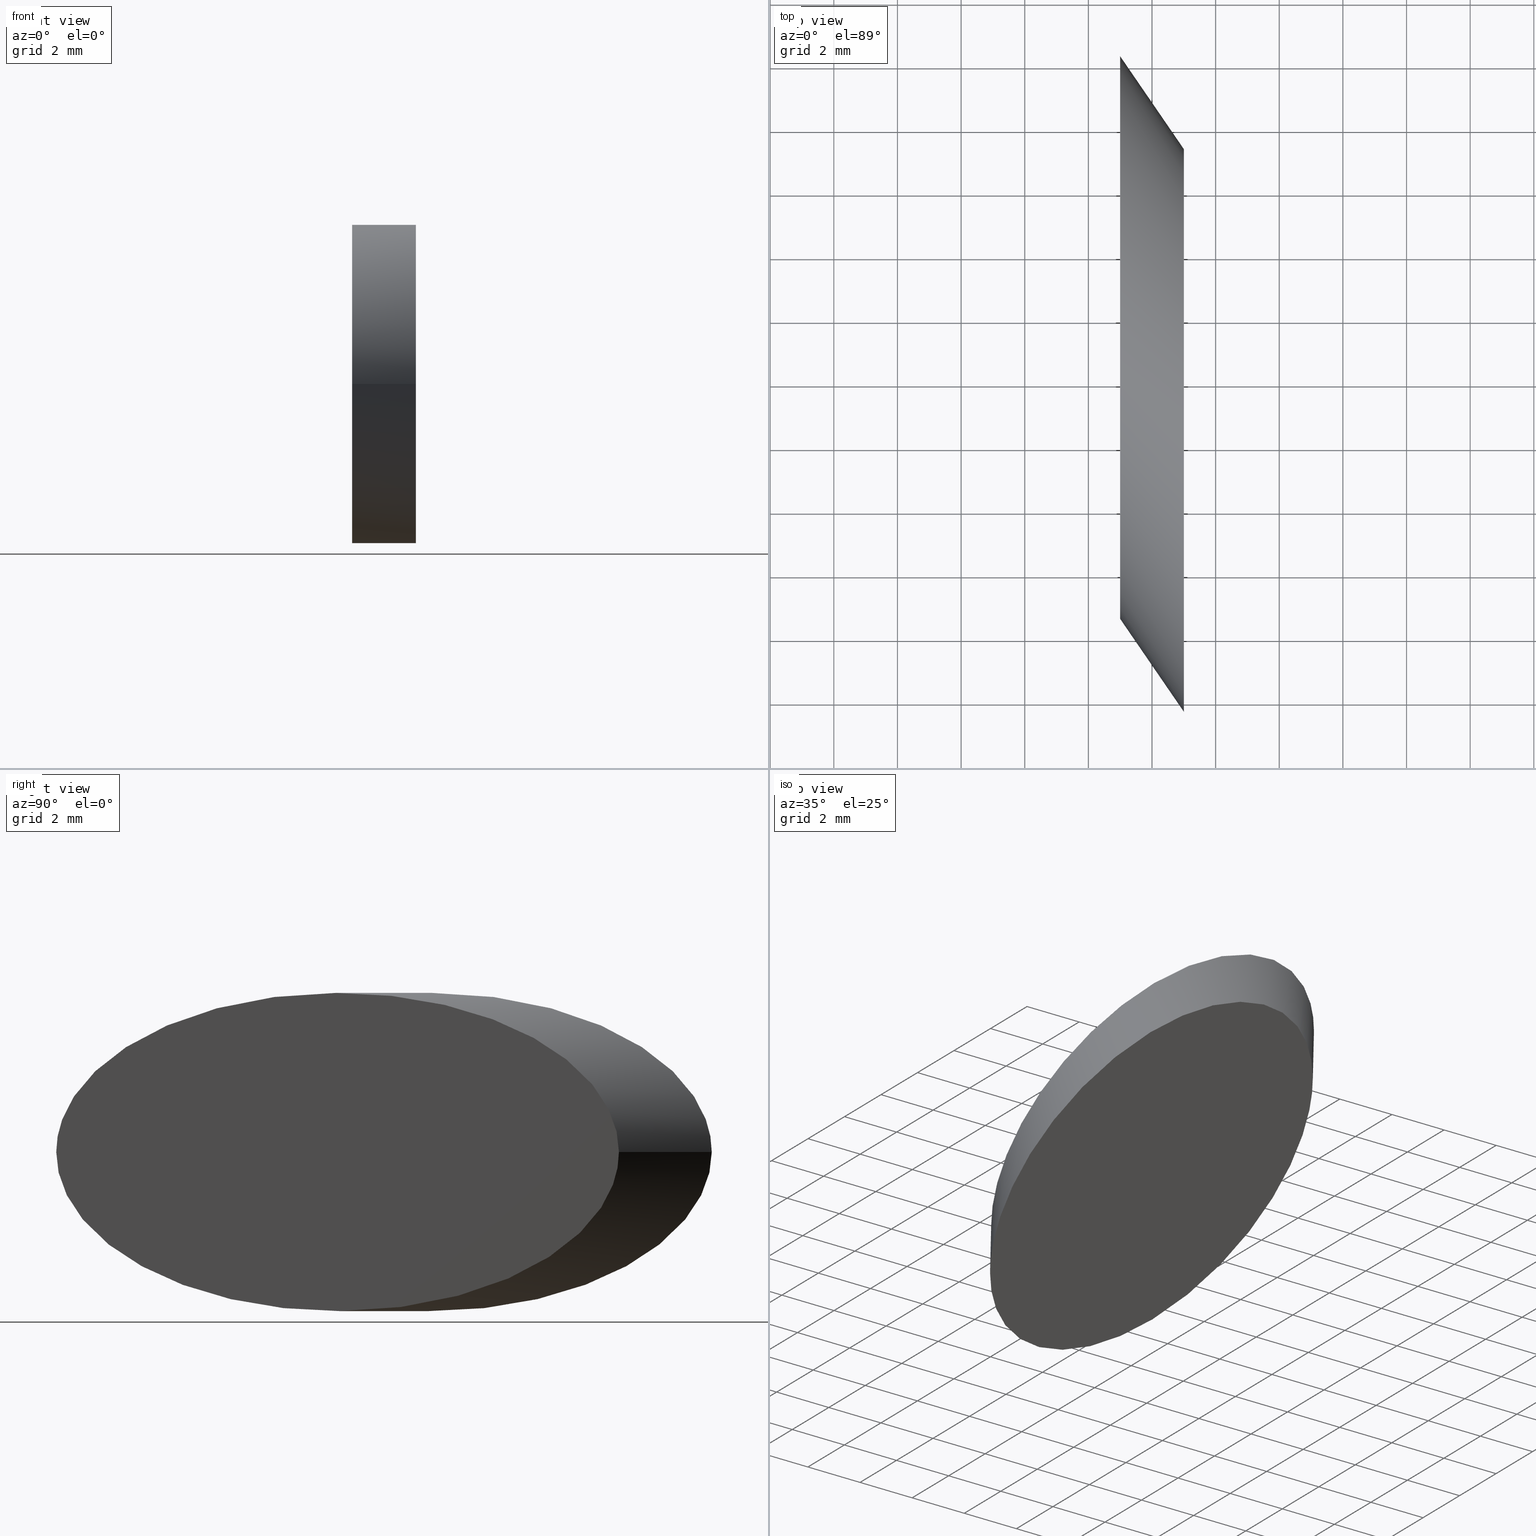
[diagram: canonical four-view strip — front | top / right | iso, engineering-drawing reading convention]
A machine part, canonical four-view strip (front | top / right | iso — engineering-drawing reading convention). The complete STEP part file that produces these views, byte-faithful:
ISO-10303-21;
HEADER;
FILE_DESCRIPTION (( 'STEP AP203' ),
    '1' );
FILE_NAME ('Web Model 65823.STEP',
    '2017-01-31T19:18:51',
    ( '' ),
    ( '' ),
    'SwSTEP 2.0',
    'SolidWorks 2016',
    '' );
FILE_SCHEMA (( 'CONFIG_CONTROL_DESIGN' ));
ENDSEC;

DATA;
#1 = COORDINATED_UNIVERSAL_TIME_OFFSET ( 5, 0, .BEHIND. ) ;
#2 = AXIS2_PLACEMENT_3D ( 'NONE', #50, #145, #36 ) ;
#3 = ADVANCED_FACE ( 'NONE', ( #53 ), #8, .T. ) ;
#4 = ORIENTED_EDGE ( 'NONE', *, *, #69, .T. ) ;
#5 = CALENDAR_DATE ( 2017, 31, 1 ) ;
#6 = COORDINATED_UNIVERSAL_TIME_OFFSET ( 5, 0, .BEHIND. ) ;
#7 = PERSON_AND_ORGANIZATION ( #15, #165 ) ;
#8 = PLANE ( 'NONE',  #92 ) ;
#9 = EDGE_LOOP ( 'NONE', ( #37, #141 ) ) ;
#10 = ORIENTED_EDGE ( 'NONE', *, *, #57, .F. ) ;
#11 = PRODUCT_DEFINITION_SHAPE ( 'NONE', 'NONE',  #55 ) ;
#12 = ADVANCED_FACE ( 'NONE', ( #88 ), #148, .T. ) ;
#13 = APPROVAL_STATUS ( 'not_yet_approved' ) ;
#14 = PERSON_AND_ORGANIZATION_ROLE ( 'creator' ) ;
#15 = PERSON ( 'UNSPECIFIED', 'UNSPECIFIED', 'UNSPECIFIED', ('UNSPECIFIED'), ('UNSPECIFIED'), ('UNSPECIFIED') ) ;
#16 = CALENDAR_DATE ( 2017, 31, 1 ) ;
#17 = VERTEX_POINT ( 'NONE', #34 ) ;
#18 = VERTEX_POINT ( 'NONE', #116 ) ;
#19 = LINE ( 'NONE', #60, #61 ) ;
#20 = CC_DESIGN_SECURITY_CLASSIFICATION ( #152, ( #110 ) ) ;
#21 = CARTESIAN_POINT ( 'NONE',  ( -1.000000000000004400, 10.30120470850948100, 6.123233995736766300E-016 ) ) ;
#22 = CARTESIAN_POINT ( 'NONE',  ( -1.000000000000004400, -7.383920638990183200, 9.999999999999998200 ) ) ;
#23 = CARTESIAN_POINT ( 'NONE',  ( 0.9999999999999993300, 7.383920638990180600, 9.999999999999998200 ) ) ;
#24 = CARTESIAN_POINT ( 'NONE',  ( 0.9999999999999950000, 7.383920638990191200, -5.000000000000000000 ) ) ;
#25 = CARTESIAN_POINT ( 'NONE',  ( 1.000000000000004400, -10.30120470850947500, 0.0000000000000000000 ) ) ;
#26 = APPROVAL_ROLE ( '' ) ;
#27 = PERSON_AND_ORGANIZATION_ROLE ( 'classification_officer' ) ;
#28 =( GEOMETRIC_REPRESENTATION_CONTEXT ( 3 ) GLOBAL_UNCERTAINTY_ASSIGNED_CONTEXT ( ( #101 ) ) GLOBAL_UNIT_ASSIGNED_CONTEXT ( ( #132, #118, #52 ) ) REPRESENTATION_CONTEXT ( 'NONE', 'WORKASPACE' ) );
#29 = PERSON_AND_ORGANIZATION ( #15, #165 ) ;
#30 = PERSON_AND_ORGANIZATION ( #15, #165 ) ;
#31 = ORIENTED_EDGE ( 'NONE', *, *, #69, .F. ) ;
#32 = ORIENTED_EDGE ( 'NONE', *, *, #162, .F. ) ;
#33 = CARTESIAN_POINT ( 'NONE',  ( 28.27234696816502400, -41.23923370907478200, 0.0000000000000000000 ) ) ;
#34 = CARTESIAN_POINT ( 'NONE',  ( -1.000000000000004400, 10.30120470850948100, 6.123233995736766300E-016 ) ) ;
#35 = COORDINATED_UNIVERSAL_TIME_OFFSET ( 5, 0, .BEHIND. ) ;
#36 = DIRECTION ( 'NONE',  ( 1.000000000000000000, 0.0000000000000000000, 0.0000000000000000000 ) ) ;
#37 = ORIENTED_EDGE ( 'NONE', *, *, #162, .T. ) ;
#38 = PRODUCT ( 'Web Model 65823', 'Web Model 65823', '', ( #147 ) ) ;
#39 = LOCAL_TIME ( 14, 18, 51.00000000000000000, #1 ) ;
#40 = PERSON_AND_ORGANIZATION ( #15, #165 ) ;
#41 = PERSON_AND_ORGANIZATION ( #15, #165 ) ;
#42 = DIRECTION ( 'NONE',  ( -0.5654469393633004800, 0.8247846741814957000, -0.0000000000000000000 ) ) ;
#43 = COORDINATED_UNIVERSAL_TIME_OFFSET ( 5, 0, .BEHIND. ) ;
#44 = CARTESIAN_POINT ( 'NONE',  ( -1.000000000000004400, 10.30120470850946600, 9.999999999999998200 ) ) ;
#45 = EDGE_LOOP ( 'NONE', ( #85, #73, #10, #31 ) ) ;
#46 = DIRECTION ( 'NONE',  ( -0.8247846741814954800, -0.5654469393633005900, 0.0000000000000000000 ) ) ;
#47 = CARTESIAN_POINT ( 'NONE',  ( 1.000000000000002400, -10.30120470850947000, -9.999999999999998200 ) ) ;
#48 = CARTESIAN_POINT ( 'NONE',  ( -1.000000000000004400, 10.30120470850948100, 6.123233995736766300E-016 ) ) ;
#49 = DATE_AND_TIME ( #142, #78 ) ;
#50 = CARTESIAN_POINT ( 'NONE',  ( 0.0000000000000000000, 0.0000000000000000000, 0.0000000000000000000 ) ) ;
#51 = LOCAL_TIME ( 14, 18, 51.00000000000000000, #6 ) ;
#52 =( NAMED_UNIT ( * ) SI_UNIT ( $, .STERADIAN. ) SOLID_ANGLE_UNIT ( ) );
#53 = FACE_OUTER_BOUND ( 'NONE', #9, .T. ) ;
#54 = ADVANCED_BREP_SHAPE_REPRESENTATION ( 'Web Model 65823', ( #125, #2 ), #28 ) ;
#55 = PRODUCT_DEFINITION ( 'UNKNOWN', '', #110, #128 ) ;
#56 = DATE_AND_TIME ( #16, #51 ) ;
#57 = EDGE_CURVE ( 'NONE', #18, #17, #65, .T. ) ;
#58 = CARTESIAN_POINT ( 'NONE',  ( 1.000000000000000900, 7.383920638990182400, 6.123233995736766300E-016 ) ) ;
#59 = CARTESIAN_POINT ( 'NONE',  ( 1.000000000000004400, -10.30120470850947500, 0.0000000000000000000 ) ) ;
#60 = CARTESIAN_POINT ( 'NONE',  ( 24.14842359725754400, -44.06646840589129300, 0.0000000000000000000 ) ) ;
#61 = VECTOR ( 'NONE', #129, 1000.000000000000000 ) ;
#62 = DATE_AND_TIME ( #100, #39 ) ;
#63 = APPROVAL_PERSON_ORGANIZATION ( #97, #171, #26 ) ;
#64 = PERSON_AND_ORGANIZATION_ROLE ( 'design_owner' ) ;
#65 =( BOUNDED_CURVE ( )  B_SPLINE_CURVE ( 3, ( #131, #22, #44, #48 ),
 .UNSPECIFIED., .F., .F. ) 
 B_SPLINE_CURVE_WITH_KNOTS ( ( 4, 4 ),
 ( 3.141592653589793100, 6.283185307179586200 ),
 .UNSPECIFIED. ) 
 CURVE ( )  GEOMETRIC_REPRESENTATION_ITEM ( )  RATIONAL_B_SPLINE_CURVE ( ( 1.000000000000000000, 0.3333333333333333700, 0.3333333333333333700, 1.000000000000000000 ) ) 
 REPRESENTATION_ITEM ( '' )  );
#66 = DATE_TIME_ROLE ( 'creation_date' ) ;
#67 = ORIENTED_EDGE ( 'NONE', *, *, #138, .F. ) ;
#68 = CC_DESIGN_APPROVAL ( #98, ( #55 ) ) ;
#69 = EDGE_CURVE ( 'NONE', #112, #18, #19, .T. ) ;
#70 = VERTEX_POINT ( 'NONE', #58 ) ;
#71 = CARTESIAN_POINT ( 'NONE',  ( 32.39627033907250100, -38.41199901225827800, 6.123233995736766300E-016 ) ) ;
#72 = FACE_OUTER_BOUND ( 'NONE', #107, .T. ) ;
#73 = ORIENTED_EDGE ( 'NONE', *, *, #138, .T. ) ;
#74 = CARTESIAN_POINT ( 'NONE',  ( 1.000000000000004400, -10.30120470850947500, 0.0000000000000000000 ) ) ;
#75 = PRODUCT_RELATED_PRODUCT_CATEGORY ( 'detail', '', ( #38 ) ) ;
#76 = CARTESIAN_POINT ( 'NONE',  ( -1.000000000000004400, -7.383920638990178800, -9.999999999999998200 ) ) ;
#77 = CC_DESIGN_PERSON_AND_ORGANIZATION_ASSIGNMENT ( #160, #64, ( #38 ) ) ;
#78 = LOCAL_TIME ( 14, 18, 51.00000000000000000, #43 ) ;
#79 = DIRECTION ( 'NONE',  ( -1.000000000000000000, 0.0000000000000000000, -0.0000000000000000000 ) ) ;
#80 = AXIS2_PLACEMENT_3D ( 'NONE', #93, #79, #119 ) ;
#81 = ADVANCED_FACE ( 'NONE', ( #72 ), #140, .T. ) ;
#82 = DATE_AND_TIME ( #5, #117 ) ;
#83 = EDGE_LOOP ( 'NONE', ( #156, #151 ) ) ;
#84 = EDGE_CURVE ( 'NONE', #17, #18, #122, .T. ) ;
#85 = ORIENTED_EDGE ( 'NONE', *, *, #159, .F. ) ;
#86 = CARTESIAN_POINT ( 'NONE',  ( 1.000000000000000900, 7.383920638990182400, 6.123233995736766300E-016 ) ) ;
#87 = APPROVAL_PERSON_ORGANIZATION ( #30, #146, #106 ) ;
#88 = FACE_OUTER_BOUND ( 'NONE', #45, .T. ) ;
#89 = CARTESIAN_POINT ( 'NONE',  ( 1.000000000000000900, 7.383920638990182400, 6.123233995736766300E-016 ) ) ;
#90 = CC_DESIGN_DATE_AND_TIME_ASSIGNMENT ( #91, #66, ( #55 ) ) ;
#91 = DATE_AND_TIME ( #126, #96 ) ;
#92 = AXIS2_PLACEMENT_3D ( 'NONE', #24, #137, #102 ) ;
#93 = CARTESIAN_POINT ( 'NONE',  ( -1.000000000000001600, 10.30120470850946600, -5.000000000000000000 ) ) ;
#94 = APPLICATION_PROTOCOL_DEFINITION ( 'international standard', 'config_control_design', 1994, #133 ) ;
#95 = APPROVAL_ROLE ( '' ) ;
#96 = LOCAL_TIME ( 14, 18, 51.00000000000000000, #35 ) ;
#97 = PERSON_AND_ORGANIZATION ( #15, #165 ) ;
#98 = APPROVAL ( #13, 'UNSPECIFIED' ) ;
#99 = AXIS2_PLACEMENT_3D ( 'NONE', #154, #155, #46 ) ;
#100 = CALENDAR_DATE ( 2017, 31, 1 ) ;
#101 = UNCERTAINTY_MEASURE_WITH_UNIT (LENGTH_MEASURE( 1.000000000000000100E-005 ), #132, 'distance_accuracy_value', 'NONE');
#102 = DIRECTION ( 'NONE',  ( -1.839176400248907000E-016, 1.000000000000000000, 0.0000000000000000000 ) ) ;
#103 = DIRECTION ( 'NONE',  ( -0.8247846741814954800, -0.5654469393633005900, 0.0000000000000000000 ) ) ;
#104 = PLANE ( 'NONE',  #80 ) ;
#105 = CC_DESIGN_PERSON_AND_ORGANIZATION_ASSIGNMENT ( #29, #14, ( #110 ) ) ;
#106 = APPROVAL_ROLE ( '' ) ;
#107 = EDGE_LOOP ( 'NONE', ( #67, #32, #4, #120 ) ) ;
#108 = APPLICATION_CONTEXT ( 'configuration controlled 3d designs of mechanical parts and assemblies' ) ;
#109 = APPROVAL_STATUS ( 'not_yet_approved' ) ;
#110 = PRODUCT_DEFINITION_FORMATION_WITH_SPECIFIED_SOURCE ( 'ANY', '', #38, .NOT_KNOWN. ) ;
#111 = COORDINATED_UNIVERSAL_TIME_OFFSET ( 5, 0, .BEHIND. ) ;
#112 = VERTEX_POINT ( 'NONE', #25 ) ;
#113 = PERSON_AND_ORGANIZATION ( #15, #165 ) ;
#114 = CARTESIAN_POINT ( 'NONE',  ( -1.000000000000004400, -7.383920638990175300, 0.0000000000000000000 ) ) ;
#115 = CARTESIAN_POINT ( 'NONE',  ( 1.000000000000002400, -10.30120470850946600, 9.999999999999998200 ) ) ;
#116 = CARTESIAN_POINT ( 'NONE',  ( -1.000000000000004400, -7.383920638990175300, 0.0000000000000000000 ) ) ;
#117 = LOCAL_TIME ( 14, 18, 51.00000000000000000, #111 ) ;
#118 =( NAMED_UNIT ( * ) PLANE_ANGLE_UNIT ( ) SI_UNIT ( $, .RADIAN. ) );
#119 = DIRECTION ( 'NONE',  ( -0.0000000000000000000, 0.0000000000000000000, 1.000000000000000000 ) ) ;
#120 = ORIENTED_EDGE ( 'NONE', *, *, #84, .F. ) ;
#121 = CC_DESIGN_PERSON_AND_ORGANIZATION_ASSIGNMENT ( #40, #143, ( #110 ) ) ;
#122 =( BOUNDED_CURVE ( )  B_SPLINE_CURVE ( 3, ( #21, #167, #76, #114 ),
 .UNSPECIFIED., .F., .T. ) 
 B_SPLINE_CURVE_WITH_KNOTS ( ( 4, 4 ),
 ( 0.0000000000000000000, 3.141592653589793100 ),
 .UNSPECIFIED. ) 
 CURVE ( )  GEOMETRIC_REPRESENTATION_ITEM ( )  RATIONAL_B_SPLINE_CURVE ( ( 1.000000000000000000, 0.3333333333333333700, 0.3333333333333333700, 1.000000000000000000 ) ) 
 REPRESENTATION_ITEM ( '' )  );
#123 = APPROVAL_DATE_TIME ( #56, #146 ) ;
#124 = CC_DESIGN_DATE_AND_TIME_ASSIGNMENT ( #49, #157, ( #152 ) ) ;
#125 = MANIFOLD_SOLID_BREP ( 'Cut-Extrude1', #149 ) ;
#126 = CALENDAR_DATE ( 2017, 31, 1 ) ;
#127 = APPROVAL_PERSON_ORGANIZATION ( #7, #98, #95 ) ;
#128 = DESIGN_CONTEXT ( 'detailed design', #133, 'design' ) ;
#129 = DIRECTION ( 'NONE',  ( -0.5654469393633004800, 0.8247846741814957000, -0.0000000000000000000 ) ) ;
#130 =( BOUNDED_CURVE ( )  B_SPLINE_CURVE ( 3, ( #89, #23, #115, #74 ),
 .UNSPECIFIED., .F., .F. ) 
 B_SPLINE_CURVE_WITH_KNOTS ( ( 4, 4 ),
 ( 1.224646799147353200E-016, 3.141592653589793100 ),
 .UNSPECIFIED. ) 
 CURVE ( )  GEOMETRIC_REPRESENTATION_ITEM ( )  RATIONAL_B_SPLINE_CURVE ( ( 1.000000000000000000, 0.3333333333333333700, 0.3333333333333333700, 1.000000000000000000 ) ) 
 REPRESENTATION_ITEM ( '' )  );
#131 = CARTESIAN_POINT ( 'NONE',  ( -1.000000000000004400, -7.383920638990175300, 0.0000000000000000000 ) ) ;
#132 =( LENGTH_UNIT ( ) NAMED_UNIT ( * ) SI_UNIT ( .MILLI., .METRE. ) );
#133 = APPLICATION_CONTEXT ( 'configuration controlled 3d designs of mechanical parts and assemblies' ) ;
#134 =( BOUNDED_CURVE ( )  B_SPLINE_CURVE ( 3, ( #59, #47, #170, #86 ),
 .UNSPECIFIED., .F., .T. ) 
 B_SPLINE_CURVE_WITH_KNOTS ( ( 4, 4 ),
 ( 3.141592653589793100, 6.283185307179586200 ),
 .UNSPECIFIED. ) 
 CURVE ( )  GEOMETRIC_REPRESENTATION_ITEM ( )  RATIONAL_B_SPLINE_CURVE ( ( 1.000000000000000000, 0.3333333333333333700, 0.3333333333333333700, 1.000000000000000000 ) ) 
 REPRESENTATION_ITEM ( '' )  );
#135 = VECTOR ( 'NONE', #42, 1000.000000000000000 ) ;
#136 = CC_DESIGN_PERSON_AND_ORGANIZATION_ASSIGNMENT ( #41, #161, ( #55 ) ) ;
#137 = DIRECTION ( 'NONE',  ( 1.000000000000000000, 1.839176400248907000E-016, 0.0000000000000000000 ) ) ;
#138 = EDGE_CURVE ( 'NONE', #70, #17, #175, .T. ) ;
#139 = APPROVAL_DATE_TIME ( #82, #98 ) ;
#140 = CYLINDRICAL_SURFACE ( 'NONE', #99, 5.000000000000003600 ) ;
#141 = ORIENTED_EDGE ( 'NONE', *, *, #159, .T. ) ;
#142 = CALENDAR_DATE ( 2017, 31, 1 ) ;
#143 = PERSON_AND_ORGANIZATION_ROLE ( 'design_supplier' ) ;
#144 = APPLICATION_PROTOCOL_DEFINITION ( 'international standard', 'config_control_design', 1994, #108 ) ;
#145 = DIRECTION ( 'NONE',  ( 0.0000000000000000000, 0.0000000000000000000, 1.000000000000000000 ) ) ;
#146 = APPROVAL ( #174, 'UNSPECIFIED' ) ;
#147 = MECHANICAL_CONTEXT ( 'NONE', #108, 'mechanical' ) ;
#148 = CYLINDRICAL_SURFACE ( 'NONE', #166, 5.000000000000003600 ) ;
#149 = CLOSED_SHELL ( 'NONE', ( #12, #81, #3, #173 ) ) ;
#150 = CC_DESIGN_APPROVAL ( #146, ( #110 ) ) ;
#151 = ORIENTED_EDGE ( 'NONE', *, *, #84, .T. ) ;
#152 = SECURITY_CLASSIFICATION ( '', '', #172 ) ;
#153 = DIRECTION ( 'NONE',  ( -0.5654469393633004800, 0.8247846741814957000, -0.0000000000000000000 ) ) ;
#154 = CARTESIAN_POINT ( 'NONE',  ( 28.27234696816502400, -41.23923370907478200, 0.0000000000000000000 ) ) ;
#155 = DIRECTION ( 'NONE',  ( -0.5654469393633004800, 0.8247846741814957000, -0.0000000000000000000 ) ) ;
#156 = ORIENTED_EDGE ( 'NONE', *, *, #57, .T. ) ;
#157 = DATE_TIME_ROLE ( 'classification_date' ) ;
#158 = CC_DESIGN_APPROVAL ( #171, ( #152 ) ) ;
#159 = EDGE_CURVE ( 'NONE', #70, #112, #130, .T. ) ;
#160 = PERSON_AND_ORGANIZATION ( #15, #165 ) ;
#161 = PERSON_AND_ORGANIZATION_ROLE ( 'creator' ) ;
#162 = EDGE_CURVE ( 'NONE', #112, #70, #134, .T. ) ;
#163 = CC_DESIGN_PERSON_AND_ORGANIZATION_ASSIGNMENT ( #113, #27, ( #152 ) ) ;
#164 = APPROVAL_DATE_TIME ( #62, #171 ) ;
#165 = ORGANIZATION ( 'UNSPECIFIED', 'UNSPECIFIED', '' ) ;
#166 = AXIS2_PLACEMENT_3D ( 'NONE', #33, #153, #103 ) ;
#167 = CARTESIAN_POINT ( 'NONE',  ( -1.000000000000004400, 10.30120470850946600, -9.999999999999998200 ) ) ;
#168 = SHAPE_DEFINITION_REPRESENTATION ( #11, #54 ) ;
#169 = FACE_OUTER_BOUND ( 'NONE', #83, .T. ) ;
#170 = CARTESIAN_POINT ( 'NONE',  ( 0.9999999999999993300, 7.383920638990183200, -9.999999999999998200 ) ) ;
#171 = APPROVAL ( #109, 'UNSPECIFIED' ) ;
#172 = SECURITY_CLASSIFICATION_LEVEL ( 'unclassified' ) ;
#173 = ADVANCED_FACE ( 'NONE', ( #169 ), #104, .T. ) ;
#174 = APPROVAL_STATUS ( 'not_yet_approved' ) ;
#175 = LINE ( 'NONE', #71, #135 ) ;
ENDSEC;
END-ISO-10303-21;
